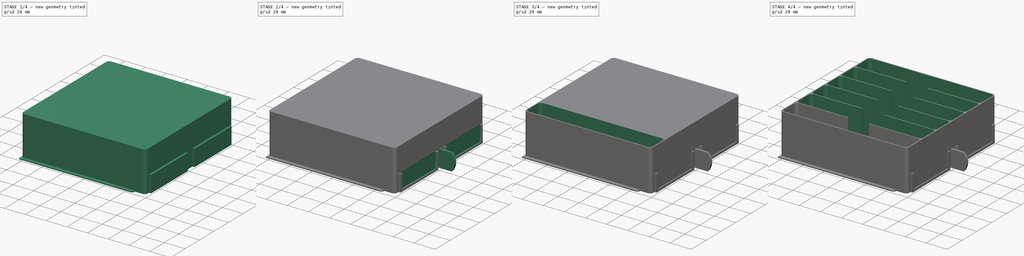
[diagram: build sequence overview — one tinted view per stage of 4, left to right]
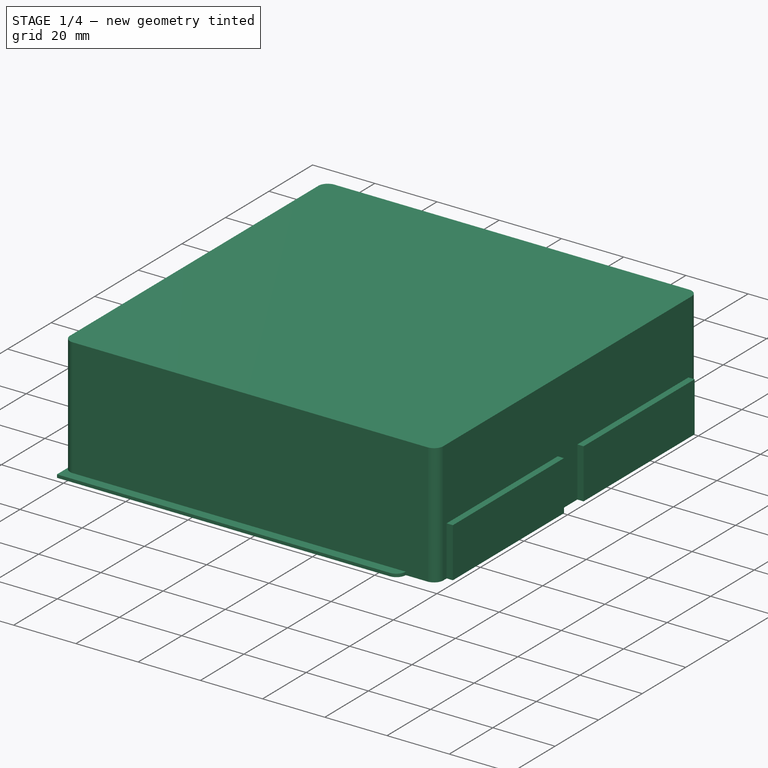
[diagram: stage 1 of 4 — iso view after this stage's code; geometry added in this stage tinted green]
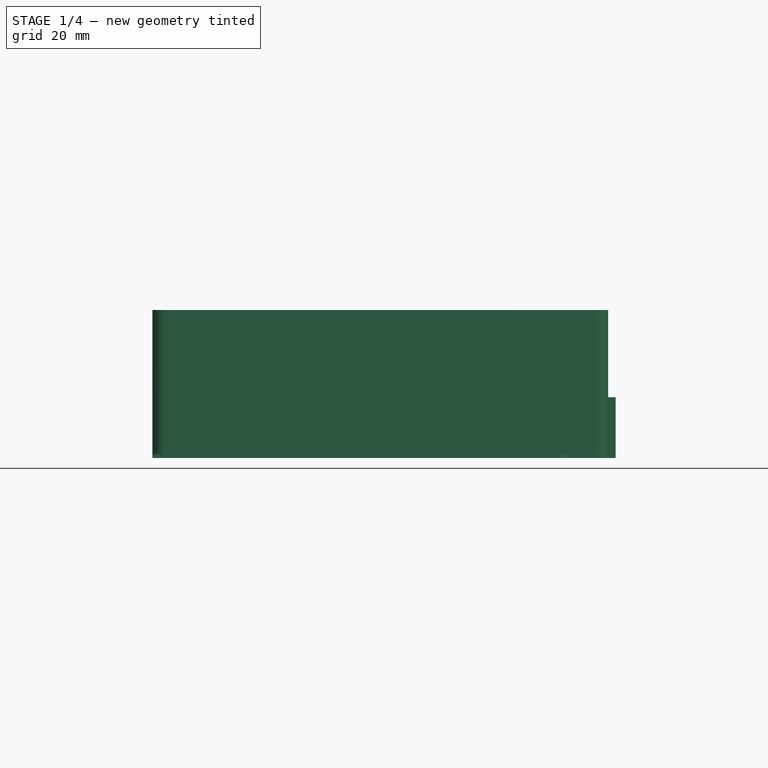
[diagram: stage 1 of 4 — front view after this stage's code; geometry added in this stage tinted green]
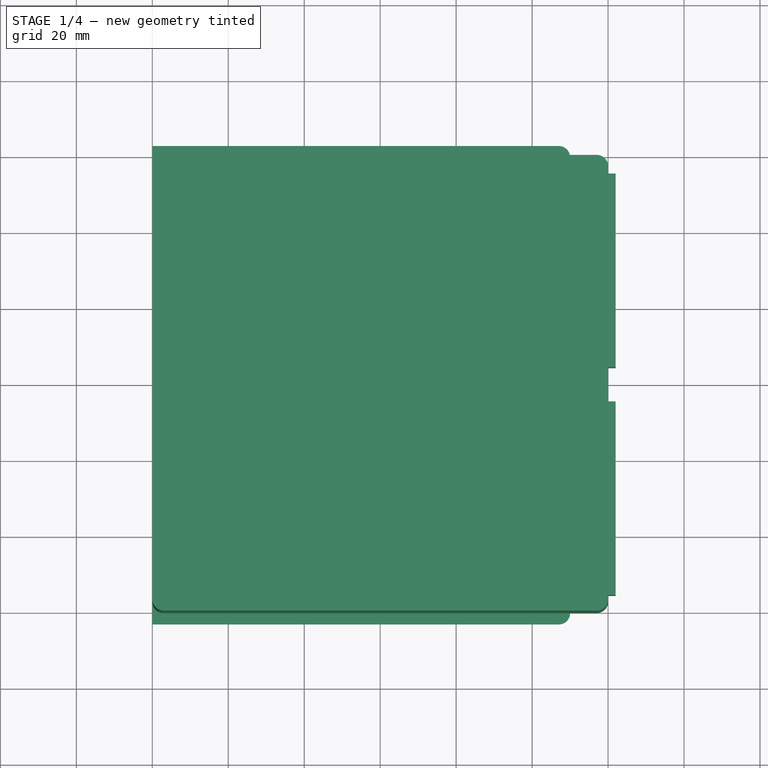
[diagram: stage 1 of 4 — top view after this stage's code; geometry added in this stage tinted green]
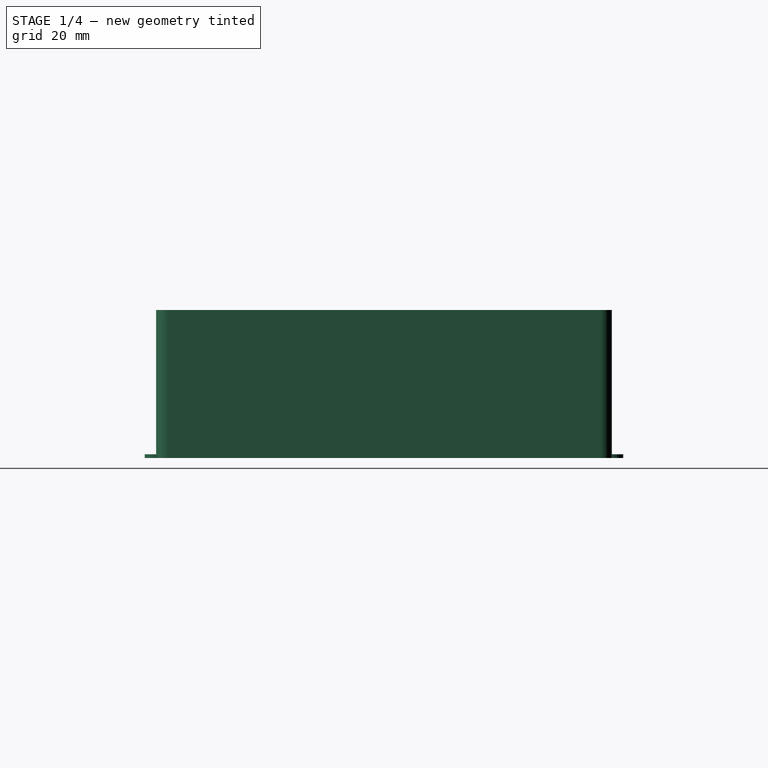
[diagram: stage 1 of 4 — right view after this stage's code; geometry added in this stage tinted green]
FCSTD DOCUMENT  (FreeCAD 0.20R27422 (Git))
Label: _JumperWireDrawer
License: All rights reserved
LicenseURL: http://en.wikipedia.org/wiki/All_rights_reserved
objects: Sketcher::SketchObject×8, PartDesign::Pad×4, PartDesign::Pocket×4, PartDesign::Body×2, PartDesign::Plane×1, Spreadsheet::Sheet×1, PartDesign::FeatureBase×1, PartDesign::LinearPattern×1, PartDesign::Fillet×1
note: 31 computed .brp shape members not serialized (recipe doc carries the construction recipe); baked Part::Feature solids carry a one-line shape summary decoded from their .brp

FEATURE [Sketcher::SketchObject] Sketch
  FullyConstrained = true
  MapMode = 5
  Support = -> [XY_Plane]
  sketch-geometry (8):
    g0: LineSegment StartX=-57 StartY=60 StartZ=0 EndX=57 EndY=60 EndZ=0
    g1: LineSegment StartX=60 StartY=57 StartZ=0 EndX=60 EndY=-57 EndZ=0
    g2: LineSegment StartX=57 StartY=-60 StartZ=0 EndX=-57 EndY=-60 EndZ=0
    g3: LineSegment StartX=-60 StartY=-57 StartZ=0 EndX=-60 EndY=57 EndZ=0
    g4: ArcOfCircle CenterX=-57 CenterY=57 CenterZ=0 NormalX=0 NormalY=0 NormalZ=1 AngleXU=0 Radius=3 StartAngle=1.5708 EndAngle=3.14159
    g5: ArcOfCircle CenterX=57 CenterY=57 CenterZ=0 NormalX=0 NormalY=0 NormalZ=1 AngleXU=0 Radius=3 StartAngle=0 EndAngle=1.5708
    g6: ArcOfCircle CenterX=57 CenterY=-57 CenterZ=0 NormalX=0 NormalY=0 NormalZ=1 AngleXU=0 Radius=3 StartAngle=4.71239 EndAngle=6.28319
    g7: ArcOfCircle CenterX=-57 CenterY=-57 CenterZ=0 NormalX=0 NormalY=0 NormalZ=1 AngleXU=0 Radius=3 StartAngle=3.14159 EndAngle=4.71239
  constraints (19):
    c: Horizontal(g0)
    c: Horizontal(g2)
    c: Vertical(g1)
    c: Vertical(g3)
    c: Equal(g0,g3)
    c: Tangent(g3,g4) = 1.5708
    c: Tangent(g0,g4) = 1.5708
    c: Tangent(g0,g5) = 1.5708
    c: Tangent(g1,g5) = 1.5708
    c: Tangent(g1,g6) = 1.5708
    c: Tangent(g2,g6) = 1.5708
    c: Tangent(g2,g7) = 1.5708
    c: Tangent(g3,g7) = 1.5708
    c: Equal(g7,g4)
    c: Equal(g4,g5)
    c: Equal(g5,g6)
    c: Symmetric(g5,g7,g-1)
    c: DistanceX(g3,g1) = 120
    c: Radius(g7) = 3
FEATURE [Sketcher::SketchObject] Sketch001
  ExternalGeometry = -> [Sketch]
  FullyConstrained = true
  MapMode = 5
  Support = -> [XY_Plane]
  sketch-geometry (6):
    g0: LineSegment StartX=-60 StartY=63 StartZ=0 EndX=47 EndY=63 EndZ=0
    g1: LineSegment StartX=50 StartY=60 StartZ=0 EndX=50 EndY=-60 EndZ=0
    g2: LineSegment StartX=47 StartY=-63 StartZ=0 EndX=-60 EndY=-63 EndZ=0
    g3: LineSegment StartX=-60 StartY=-63 StartZ=0 EndX=-60 EndY=63 EndZ=0
    g4: ArcOfCircle CenterX=47 CenterY=60 CenterZ=0 NormalX=0 NormalY=0 NormalZ=1 AngleXU=0 Radius=3 StartAngle=-9e-16 EndAngle=1.5708
    g5: ArcOfCircle CenterX=47 CenterY=-60 CenterZ=0 NormalX=0 NormalY=0 NormalZ=1 AngleXU=0 Radius=3 StartAngle=4.71239 EndAngle=6.28319
  constraints (15):
    c: Coincident(g2,g3)
    c: Coincident(g3,g0)
    c: Horizontal(g0)
    c: Horizontal(g2)
    c: Vertical(g1)
    c: Tangent(g0,g4) = 1.5708
    c: Tangent(g1,g4) = 1.5708
    c: Tangent(g2,g5) = 1.5708
    c: Tangent(g1,g5) = 1.5708
    c: Equal(g5,g4)
    c: Symmetric(g2,g0,g-1)
    c: PointOnObject(g-3,g3)
    c: DistanceY(g3,g3) = 126
    c: DistanceX(g0,g1) = 110
    c: Radius(g4) = 3
FEATURE [PartDesign::Pad] Pad
  AllowMultiFace = false
  Direction = (0,0,1)
  Length = 39
  Length2 = 100
  Profile = -> Sketch
  Type = 0
  expr: Length = <<DrawerHight>>.hight
FEATURE [PartDesign::Pad] Pad001
  AllowMultiFace = false
  BaseFeature = -> Pad
  Direction = (0,0,1)
  Length = 1
  Length2 = 100
  Profile = -> Sketch001
  Type = 0
FEATURE [Sketcher::SketchObject] Sketch002
  FullyConstrained = true
  MapMode = 5
  Placement = pos=(60,0,0) rot=(0.57735,0.57735,0.57735;2.0944rad)
  Support = -> [Pad001]
  sketch-geometry (8):
    g0: LineSegment StartX=-55.5 StartY=16 StartZ=0 EndX=-4.5 EndY=16 EndZ=0
    g1: LineSegment StartX=-4.5 StartY=16 StartZ=0 EndX=-4.5 EndY=0 EndZ=0
    g2: LineSegment StartX=-4.5 StartY=0 StartZ=0 EndX=-55.5 EndY=0 EndZ=0
    g3: LineSegment StartX=-55.5 StartY=0 StartZ=0 EndX=-55.5 EndY=16 EndZ=0
    g4: LineSegment StartX=4.5 StartY=0 StartZ=0 EndX=55.5 EndY=0 EndZ=0
    g5: LineSegment StartX=55.5 StartY=0 StartZ=0 EndX=55.5 EndY=16 EndZ=0
    g6: LineSegment StartX=55.5 StartY=16 StartZ=0 EndX=4.5 EndY=16 EndZ=0
    g7: LineSegment StartX=4.5 StartY=16 StartZ=0 EndX=4.5 EndY=0 EndZ=0
  constraints (23):
    c: Coincident(g0,g1)
    c: Coincident(g1,g2)
    c: Coincident(g2,g3)
    c: Coincident(g3,g0)
    c: Horizontal(g0)
    c: Horizontal(g2)
    c: Vertical(g1)
    c: Vertical(g3)
    c: PointOnObject(g1,g-1)
    c: Coincident(g4,g5)
    c: Coincident(g5,g6)
    c: Coincident(g6,g7)
    c: Coincident(g7,g4)
    c: Horizontal(g4)
    c: Horizontal(g6)
    c: Vertical(g5)
    c: Vertical(g7)
    c: Symmetric(g1,g4,g-2)
    c: DistanceX(g1,g4) = 9
    c: DistanceX(g2,g2) = 51
    c: DistanceY(g3,g3) = 16
    c: Equal(g1,g7)
    c: Equal(g4,g2)
FEATURE [Sketcher::SketchObject] Sketch005
  ExternalGeometry = -> [Sketch002]
  FullyConstrained = true
  MapMode = 5
  Placement = pos=(0,0,0) rot=(1,0,0;1.5708rad)
  Support = -> [XZ_Plane]
  sketch-geometry (4):
    g0: ArcOfCircle CenterX=63.0557 CenterY=8 CenterZ=0 NormalX=0 NormalY=0 NormalZ=1 AngleXU=0 Radius=12 StartAngle=5.55346 EndAngle=7.01291
    g1: LineSegment StartX=72 StartY=16 StartZ=0 EndX=60 EndY=16 EndZ=0
    g2: LineSegment StartX=60 StartY=16 StartZ=0 EndX=60 EndY=1.2859e-11 EndZ=0
    g3: LineSegment StartX=60 StartY=1.2859e-11 StartZ=0 EndX=72 EndY=1.2859e-11 EndZ=0
  constraints (11):
    c: Coincident(g0,g1)
    c: Coincident(g1,g-3)
    c: Horizontal(g1)
    c: Coincident(g1,g2)
    c: Coincident(g2,g-3)
    c: Coincident(g2,g3)
    c: Coincident(g3,g0)
    c: Horizontal(g3)
    c: Equal(g1,g3)
    c: DistanceX(g1,g1) = 12
    c: Radius(g0) = 12
FEATURE [PartDesign::Plane] DatumPlane
  Length = 137.527
  MapMode = 5
  Placement = pos=(60,0,0) rot=(0.57735,0.57735,0.57735;2.0944rad)
  ResizeMode = 0
  Support = -> [Pad001]
  Width = 81.5271
FEATURE [Sketcher::SketchObject] Sketch003
  FullyConstrained = true
  MapMode = 5
  Placement = pos=(60,0,0) rot=(0.57735,0.57735,0.57735;2.0944rad)
  Support = -> [DatumPlane]
  sketch-geometry (8):
    g0: LineSegment StartX=-53 StartY=16 StartZ=0 EndX=-7 EndY=16 EndZ=0
    g1: LineSegment StartX=-7 StartY=16 StartZ=0 EndX=-7 EndY=2 EndZ=0
    g2: LineSegment StartX=-7 StartY=2 StartZ=0 EndX=-53 EndY=2 EndZ=0
    g3: LineSegment StartX=-53 StartY=2 StartZ=0 EndX=-53 EndY=16 EndZ=0
    g4: LineSegment StartX=7 StartY=16 StartZ=0 EndX=53 EndY=16 EndZ=0
    g5: LineSegment StartX=53 StartY=16 StartZ=0 EndX=53 EndY=2 EndZ=0
    g6: LineSegment StartX=53 StartY=2 StartZ=0 EndX=7 EndY=2 EndZ=0
    g7: LineSegment StartX=7 StartY=2 StartZ=0 EndX=7 EndY=16 EndZ=0
  constraints (23):
    c: Coincident(g0,g1)
    c: Coincident(g1,g2)
    c: Coincident(g2,g3)
    c: Coincident(g3,g0)
    c: Horizontal(g0)
    c: Horizontal(g2)
    c: Vertical(g1)
    c: Vertical(g3)
    c: Coincident(g4,g5)
    c: Coincident(g5,g6)
    c: Coincident(g6,g7)
    c: Coincident(g7,g4)
    c: Horizontal(g4)
    c: Horizontal(g6)
    c: Vertical(g5)
    c: Vertical(g7)
    c: Equal(g1,g7)
    c: Symmetric(g6,g1,g-2)
    c: Equal(g2,g6)
    c: DistanceY(g-1,g1) = 2
    c: DistanceX(g0,g4) = 14
    c: DistanceY(g3,g3) = 14
    c: DistanceX(g0,g0) = 46
FEATURE [Sketcher::SketchObject] Sketch004
  FullyConstrained = true
  MapMode = 5
  Placement = pos=(60,0,0) rot=(0.57735,0.57735,0.57735;2.0944rad)
  Support = -> [DatumPlane]
  sketch-geometry (8):
    g0: LineSegment StartX=-5.5 StartY=16 StartZ=0 EndX=-54.5 EndY=16 EndZ=0
    g1: LineSegment StartX=-54.5 StartY=16 StartZ=0 EndX=-54.5 EndY=1 EndZ=0
    g2: LineSegment StartX=-54.5 StartY=1 StartZ=0 EndX=-5.5 EndY=1 EndZ=0
    g3: LineSegment StartX=-5.5 StartY=1 StartZ=0 EndX=-5.5 EndY=16 EndZ=0
    g4: LineSegment StartX=5.5 StartY=16 StartZ=0 EndX=54.5 EndY=16 EndZ=0
    g5: LineSegment StartX=54.5 StartY=16 StartZ=0 EndX=54.5 EndY=1 EndZ=0
    g6: LineSegment StartX=54.5 StartY=1 StartZ=0 EndX=5.5 EndY=1 EndZ=0
    g7: LineSegment StartX=5.5 StartY=1 StartZ=0 EndX=5.5 EndY=16 EndZ=0
  constraints (23):
    c: Coincident(g0,g1)
    c: Coincident(g1,g2)
    c: Coincident(g2,g3)
    c: Coincident(g3,g0)
    c: Horizontal(g0)
    c: Horizontal(g2)
    c: Vertical(g1)
    c: Vertical(g3)
    c: Coincident(g4,g5)
    c: Coincident(g5,g6)
    c: Coincident(g6,g7)
    c: Coincident(g7,g4)
    c: Horizontal(g4)
    c: Horizontal(g6)
    c: Vertical(g5)
    c: Vertical(g7)
    c: Symmetric(g6,g2,g-2)
    c: DistanceY(g-1,g2) = 1
    c: DistanceY(g1,g1) = 15
    c: DistanceX(g2,g2) = 49
    c: Equal(g2,g6)
    c: Equal(g3,g7)
    c: DistanceX(g0,g4) = 11
FEATURE [PartDesign::Pad] Pad002
  AllowMultiFace = false
  BaseFeature = -> Pad001
  Direction = (1,0,0)
  Length = 2
  Length2 = 100
  Profile = -> Sketch002
  Type = 0
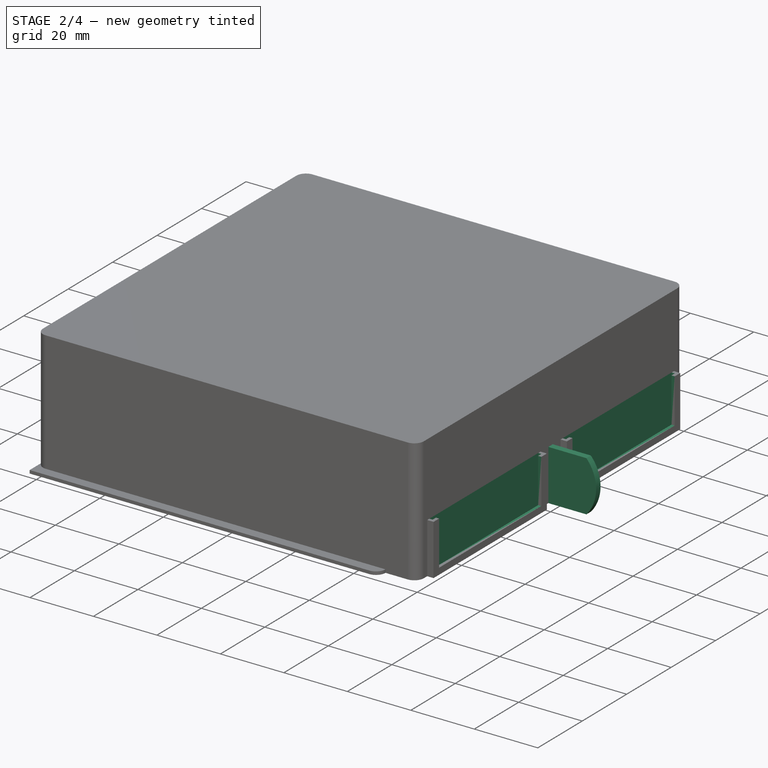
[diagram: stage 2 of 4 — iso view after this stage's code; geometry added in this stage tinted green]
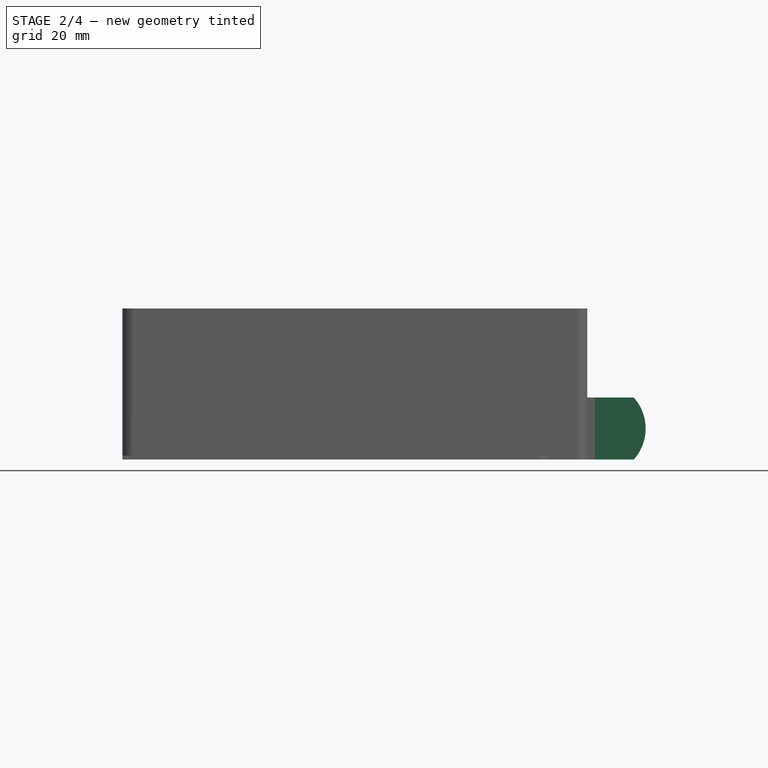
[diagram: stage 2 of 4 — front view after this stage's code; geometry added in this stage tinted green]
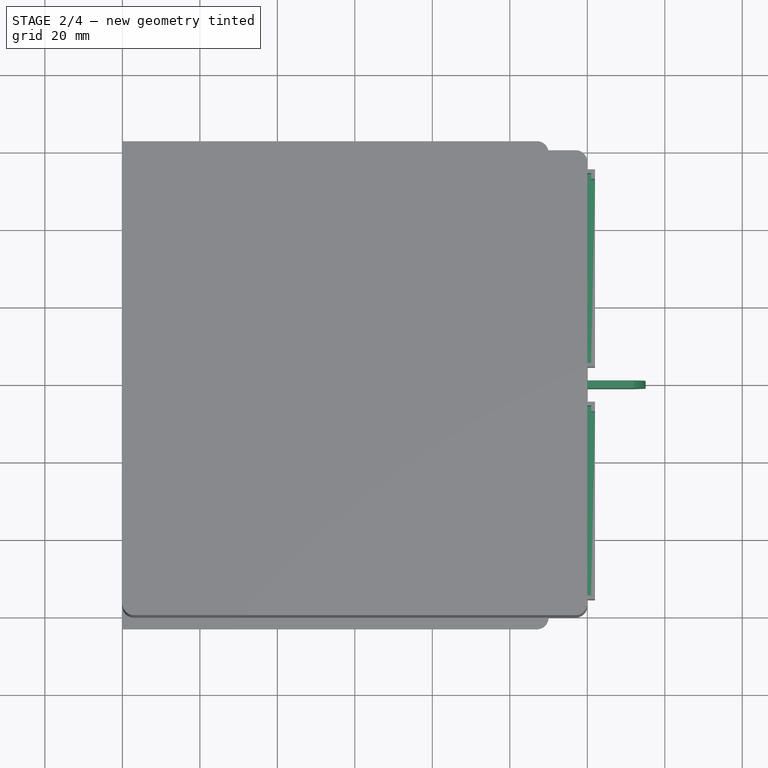
[diagram: stage 2 of 4 — top view after this stage's code; geometry added in this stage tinted green]
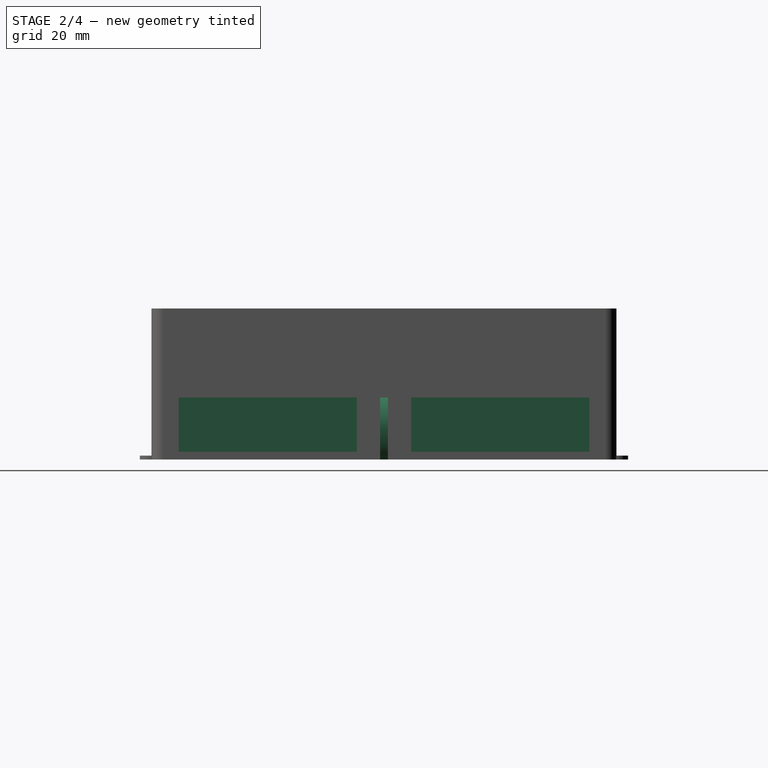
[diagram: stage 2 of 4 — right view after this stage's code; geometry added in this stage tinted green]
FEATURE [PartDesign::Pocket] Pocket
  AllowMultiFace = false
  BaseFeature = -> Pad002
  Direction = (-1,0,0)
  Length = 3
  Length2 = 100
  Profile = -> Sketch003
  Reversed = true
  Type = 0
FEATURE [PartDesign::Pocket] Pocket001
  AllowMultiFace = false
  BaseFeature = -> Pocket
  Direction = (-1,0,0)
  Length = 1
  Length2 = 100
  Profile = -> Sketch004
  Reversed = true
  Type = 0
FEATURE [PartDesign::Pad] Pad003
  AllowMultiFace = false
  BaseFeature = -> Pocket001
  Direction = (0,-1,-2e-16)
  Length = 2
  Length2 = 100
  Midplane = true
  Profile = -> Sketch005
  Type = 0
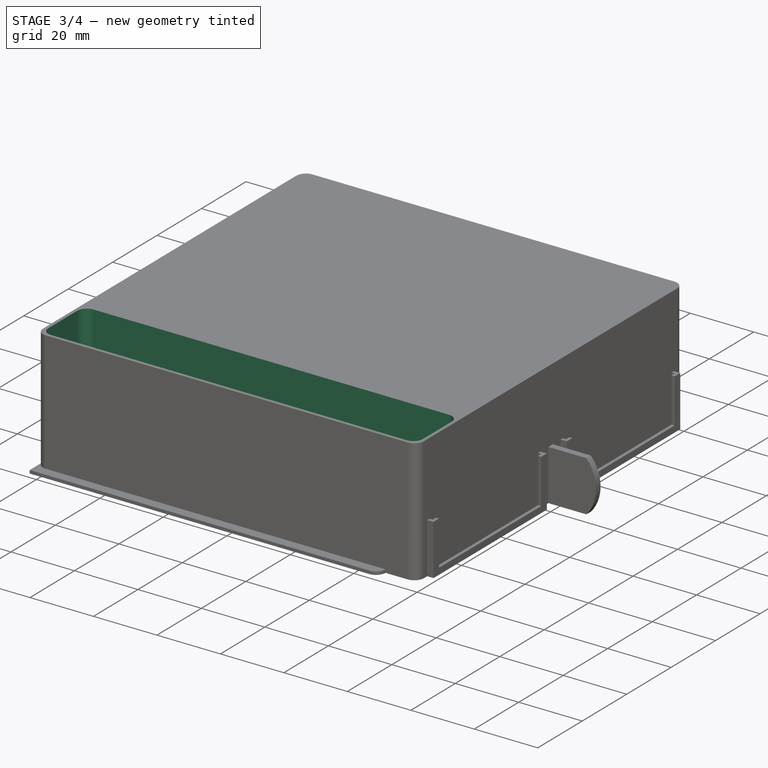
[diagram: stage 3 of 4 — iso view after this stage's code; geometry added in this stage tinted green]
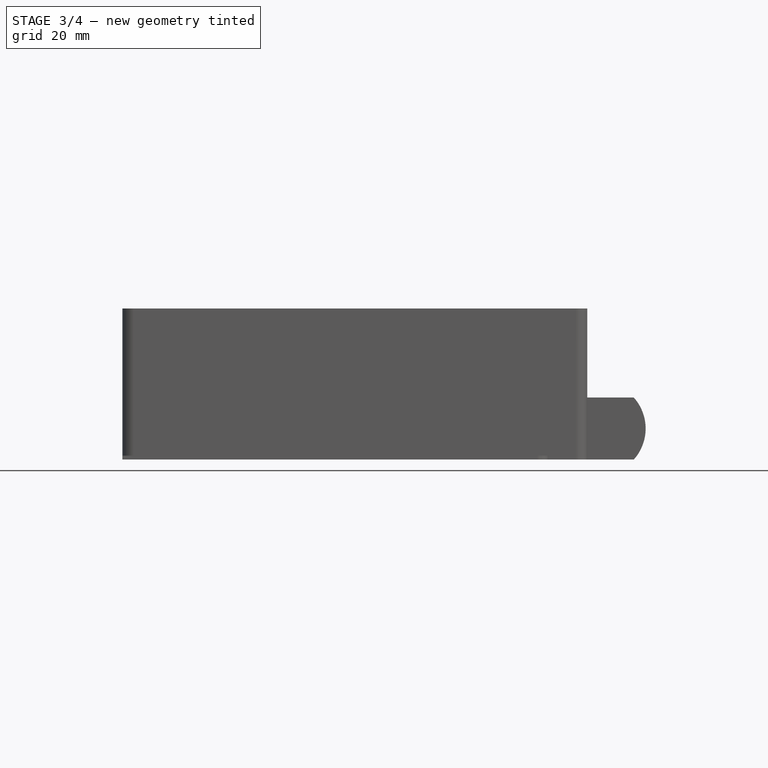
[diagram: stage 3 of 4 — front view after this stage's code; geometry added in this stage tinted green]
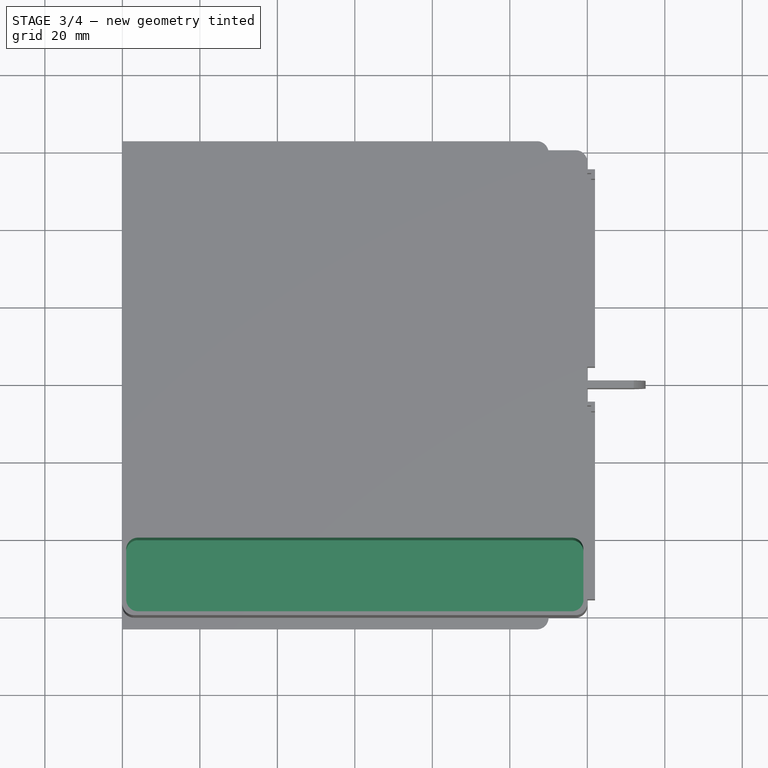
[diagram: stage 3 of 4 — top view after this stage's code; geometry added in this stage tinted green]
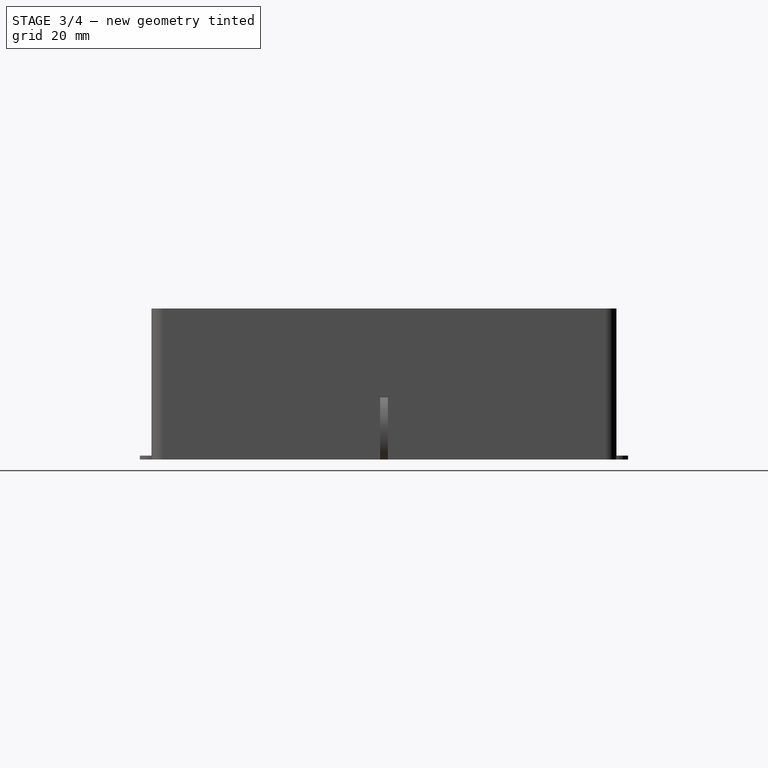
[diagram: stage 3 of 4 — right view after this stage's code; geometry added in this stage tinted green]
FEATURE [Spreadsheet::Sheet] Spreadsheet  label="DrawerHight"
  cells = A2=please enter the desired height in mm; A3=Hight:; B3(hight)=39; A5=Info:; A6=1U = 19mm; A7=2U = 39mm; A8=3U = 59mm; A9=4U = 79mm; A10=5U = 99mm; A11=6U = 119mm
FEATURE [PartDesign::Body] Body  label="Main-Body"
  Group = -> [Sketch,Pad,Sketch001,Pad001,DatumPlane,Sketch002,Pad002,Sketch003,Pocket,Sketch004,Pocket001,Sketch005,Pad003]
  Origin = -> Origin
  Tip = -> Pad003
FEATURE [PartDesign::FeatureBase] Clone001
  BaseFeature = -> Body
FEATURE [Sketcher::SketchObject] Sketch012
  AttachmentOffset = pos=(0,0,39) rot=(0,0,1;0rad)
  FullyConstrained = true
  MapMode = 5
  Placement = pos=(0,0,39) rot=(0,0,1;0rad)
  Support = -> [XY_Plane002]
  expr: .AttachmentOffset.Base.z = <<DrawerHight>>.hight
  sketch-geometry (8):
    g0: LineSegment StartX=-56 StartY=-40 StartZ=0 EndX=56 EndY=-40 EndZ=0
    g1: LineSegment StartX=59 StartY=-43 StartZ=0 EndX=59 EndY=-56 EndZ=0
    g2: LineSegment StartX=56 StartY=-59 StartZ=0 EndX=-56 EndY=-59 EndZ=0
    g3: LineSegment StartX=-59 StartY=-56 StartZ=0 EndX=-59 EndY=-43 EndZ=0
    g4: ArcOfCircle CenterX=-56 CenterY=-43 CenterZ=0 NormalX=0 NormalY=0 NormalZ=1 AngleXU=0 Radius=3 StartAngle=1.5708 EndAngle=3.14159
    g5: ArcOfCircle CenterX=-56 CenterY=-56 CenterZ=0 NormalX=0 NormalY=0 NormalZ=1 AngleXU=0 Radius=3 StartAngle=3.14159 EndAngle=4.71239
    g6: ArcOfCircle CenterX=56 CenterY=-56 CenterZ=0 NormalX=0 NormalY=0 NormalZ=1 AngleXU=0 Radius=3 StartAngle=4.71239 EndAngle=6.28319
    g7: ArcOfCircle CenterX=56 CenterY=-43 CenterZ=0 NormalX=0 NormalY=0 NormalZ=1 AngleXU=0 Radius=3 StartAngle=0 EndAngle=1.5708
  constraints (19):
    c: Horizontal(g0)
    c: Horizontal(g2)
    c: Vertical(g1)
    c: Vertical(g3)
    c: Tangent(g3,g4) = 1.5708
    c: Tangent(g0,g4) = 1.5708
    c: Tangent(g3,g5) = 1.5708
    c: Tangent(g2,g5) = 1.5708
    c: Tangent(g2,g6) = 1.5708
    c: Tangent(g1,g6) = 1.5708
    c: Tangent(g1,g7) = 1.5708
    c: Tangent(g0,g7) = 1.5708
    c: Equal(g5,g6)
    c: Equal(g6,g7)
    c: Radius(g4) = 3
    c: DistanceY(g2,g0) = 19
    c: DistanceY(g2,g-1) = 59
    c: DistanceX(g3,g1) = 118
    c: Symmetric(g4,g7,g-2)
FEATURE [PartDesign::Pocket] Pocket007
  BaseFeature = -> Clone001
  Direction = (0,0,-1)
  Length = 38
  Length2 = 100
  Profile = -> Sketch012
  Refine = true
  Type = 0
  expr: Length = <<DrawerHight>>.hight - 1
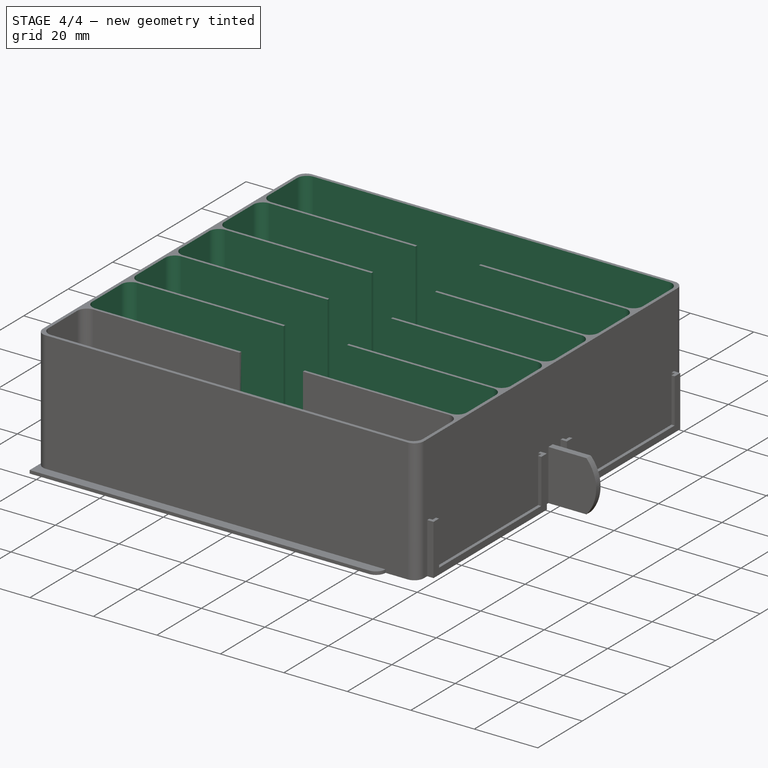
[diagram: stage 4 of 4 — iso view after this stage's code; geometry added in this stage tinted green]
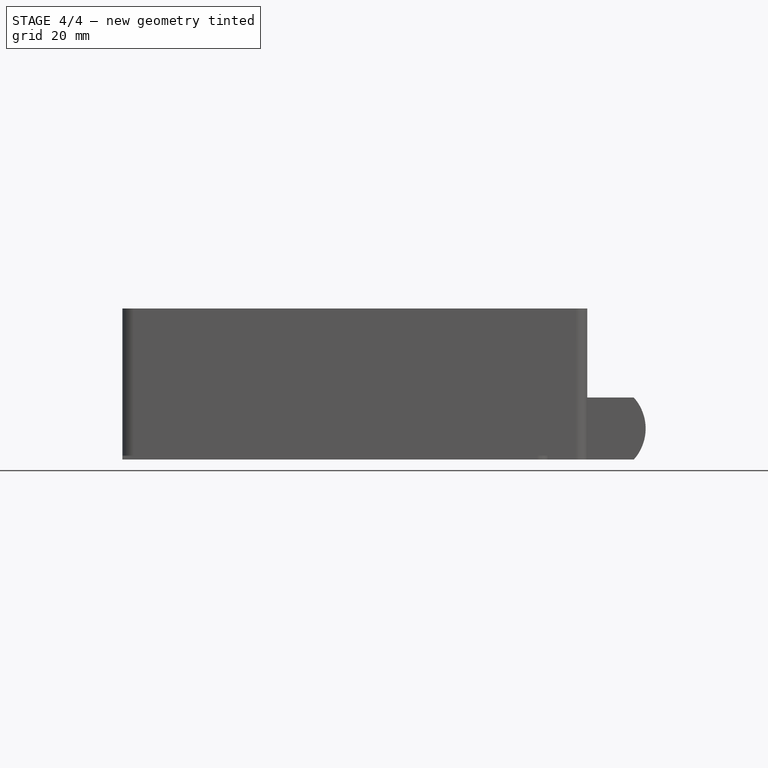
[diagram: stage 4 of 4 — front view after this stage's code; geometry added in this stage tinted green]
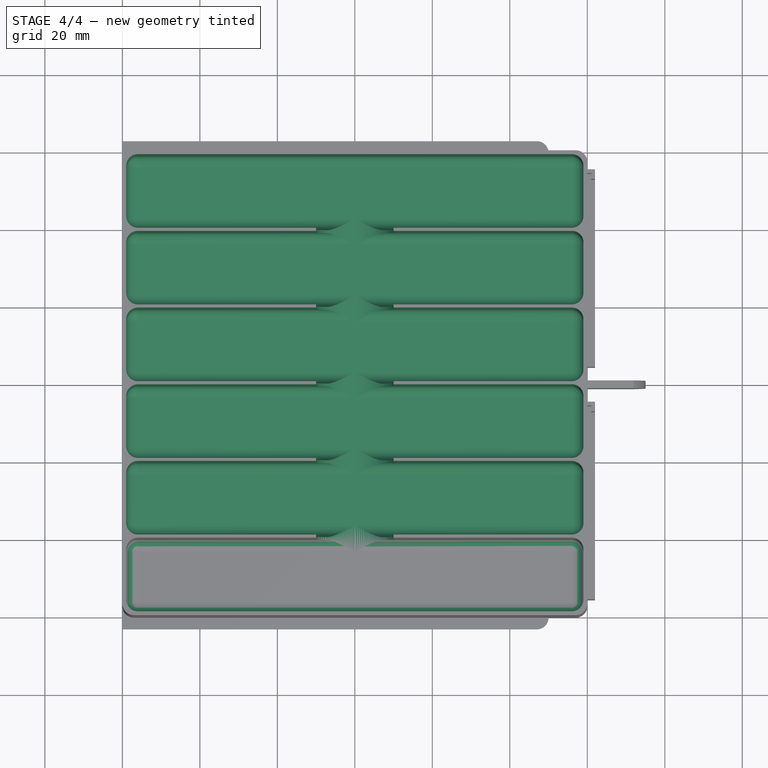
[diagram: stage 4 of 4 — top view after this stage's code; geometry added in this stage tinted green]
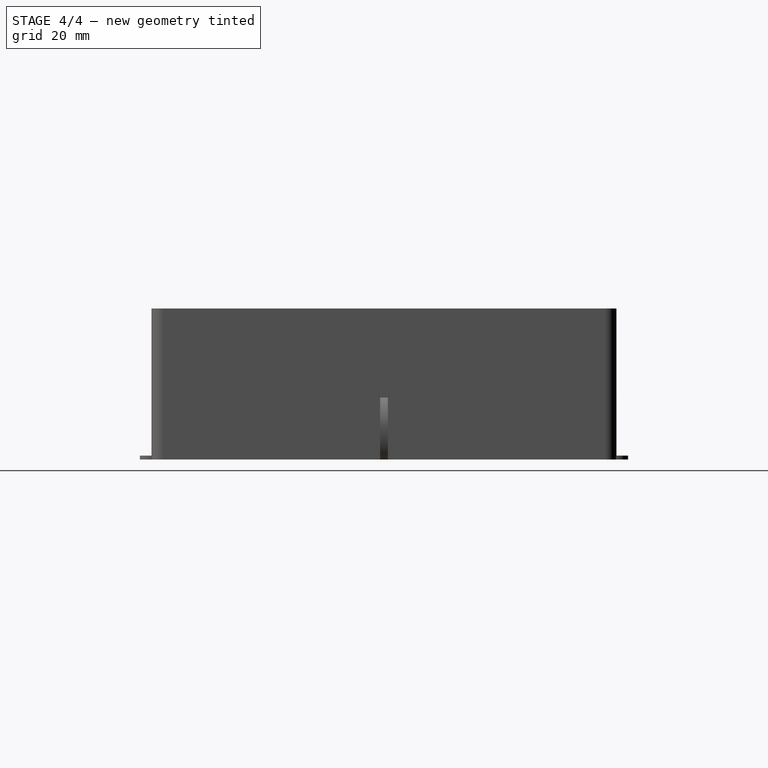
[diagram: stage 4 of 4 — right view after this stage's code; geometry added in this stage tinted green]
FEATURE [PartDesign::LinearPattern] LinearPattern001
  BaseFeature = -> Pocket007
  Direction = -> Sketch012 [V_Axis]
  Length = 99
  Occurrences = 6
  Originals = -> [Pocket007]
  Overlap = 0
  Refine = true
FEATURE [PartDesign::Fillet] Fillet001
  Base = -> LinearPattern001 [Face91,Face92,Face93,Face94,Face95,Face96]
  BaseFeature = -> LinearPattern001
  Radius = 3
  Refine = true
  SupportTransform = false
  UseAllEdges = false
FEATURE [Sketcher::SketchObject] Sketch013
  FullyConstrained = true
  MapMode = 5
  Placement = pos=(0,0,0) rot=(1,0,0;1.5708rad)
  Support = -> [XZ_Plane002]
  expr: Constraints[12] = <<DrawerHight>>.hight + 1
  sketch-geometry (5):
    g0: ArcOfCircle CenterX=0 CenterY=11 CenterZ=0 NormalX=0 NormalY=0 NormalZ=1 AngleXU=0 Radius=10 StartAngle=3.14159 EndAngle=6.28319
    g1: LineSegment StartX=-10 StartY=11 StartZ=0 EndX=-10 EndY=40 EndZ=0
    g2: LineSegment StartX=-10 StartY=40 StartZ=0 EndX=10 EndY=40 EndZ=0
    g3: LineSegment StartX=10 StartY=40 StartZ=0 EndX=10 EndY=11 EndZ=0
    g4: GeomPoint X=0 Y=1 Z=0
  constraints (14):
    c: Tangent(g0,g1) = 1.5708
    c: Coincident(g1,g2)
    c: Horizontal(g2)
    c: Coincident(g2,g3)
    c: Coincident(g3,g0)
    c: Vertical(g3)
    c: Vertical(g1)
    c: Tangent(g3,g0)
    c: DistanceX(g2,g2) = 20
    c: PointOnObject(g4,g0)
    c: Vertical(g4,g0)
    c: DistanceY(g-1,g4) = 1
    c: DistanceY(g-1,g1) = 40
    c: PointOnObject(g0,g-2)
FEATURE [PartDesign::Pocket] Pocket008
  BaseFeature = -> Fillet001
  Direction = (0,1,2e-16)
  Length = 86
  Length2 = 100
  Midplane = true
  Profile = -> Sketch013
  Refine = true
  Type = 0
FEATURE [PartDesign::Body] Body002  label="JumperWireDrawer"
  BaseFeature = -> Body
  Group = -> [Clone001,Sketch012,Pocket007,LinearPattern001,Fillet001,Sketch013,Pocket008]
  Origin = -> Origin002
  Tip = -> Pocket008
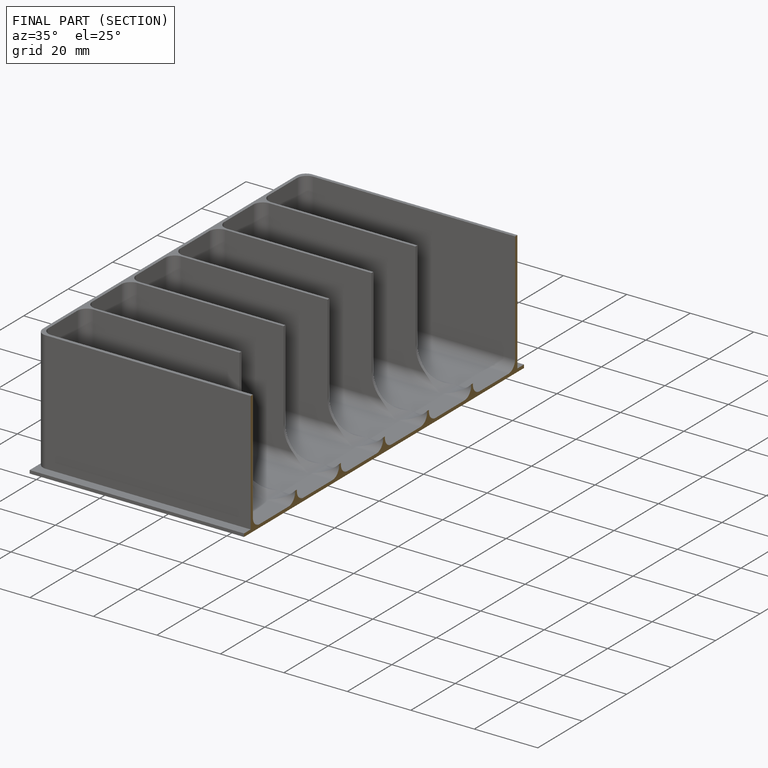
[diagram: finished part — half-section view (interior)]
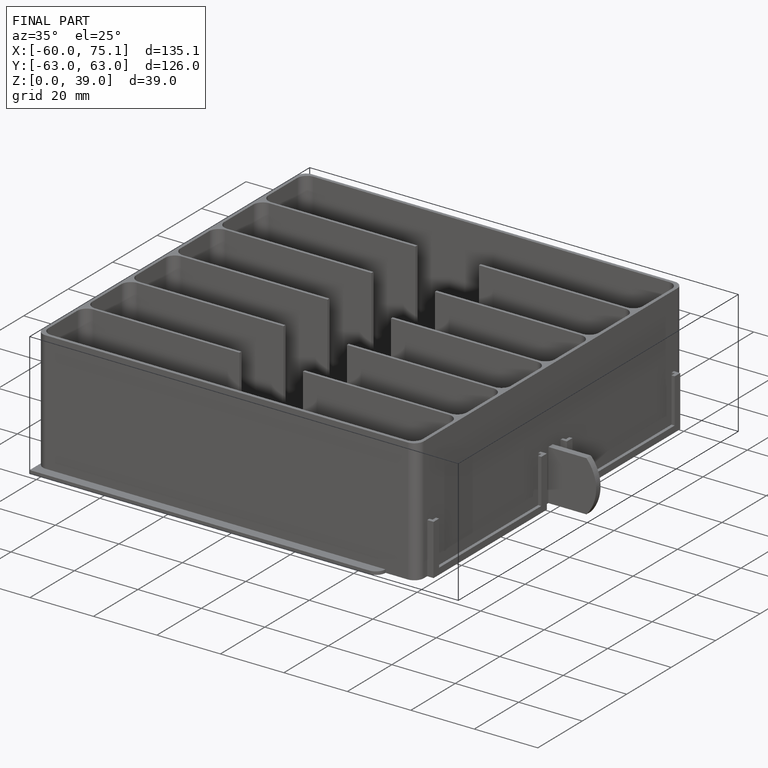
[diagram: finished part — iso view with bounding-box wireframe]
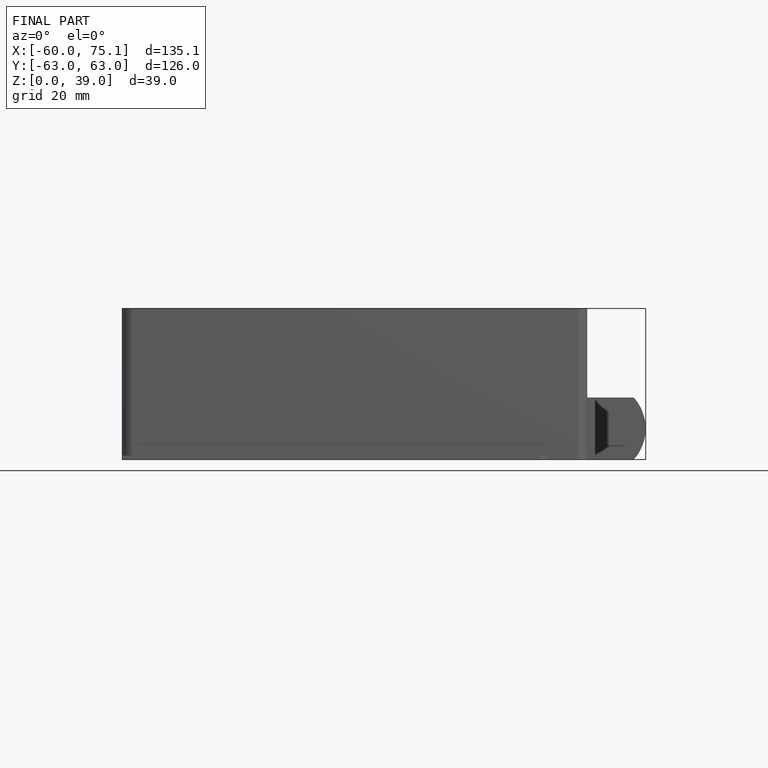
[diagram: finished part — front view with bounding-box wireframe]
